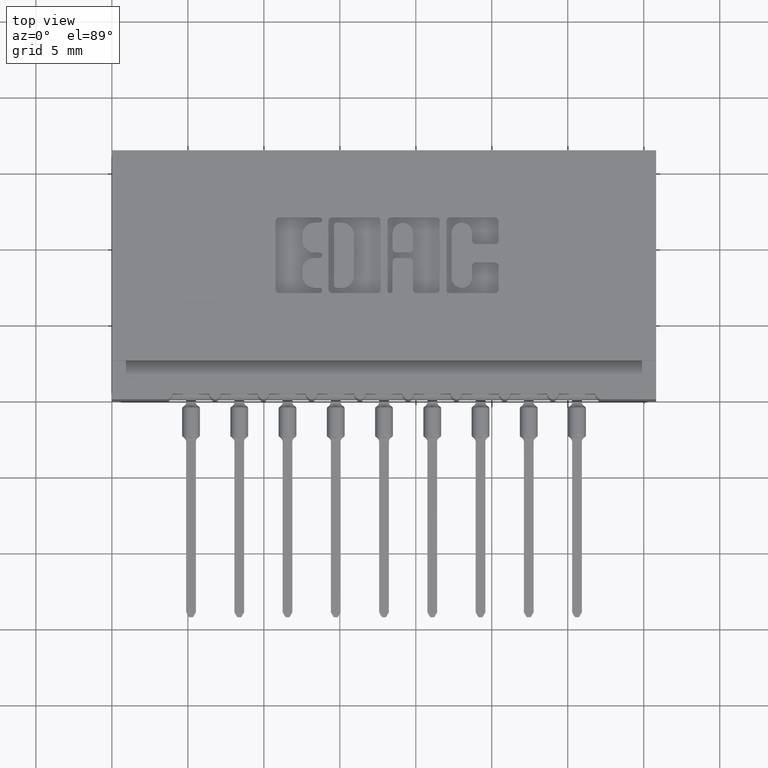
[diagram: clean part render]
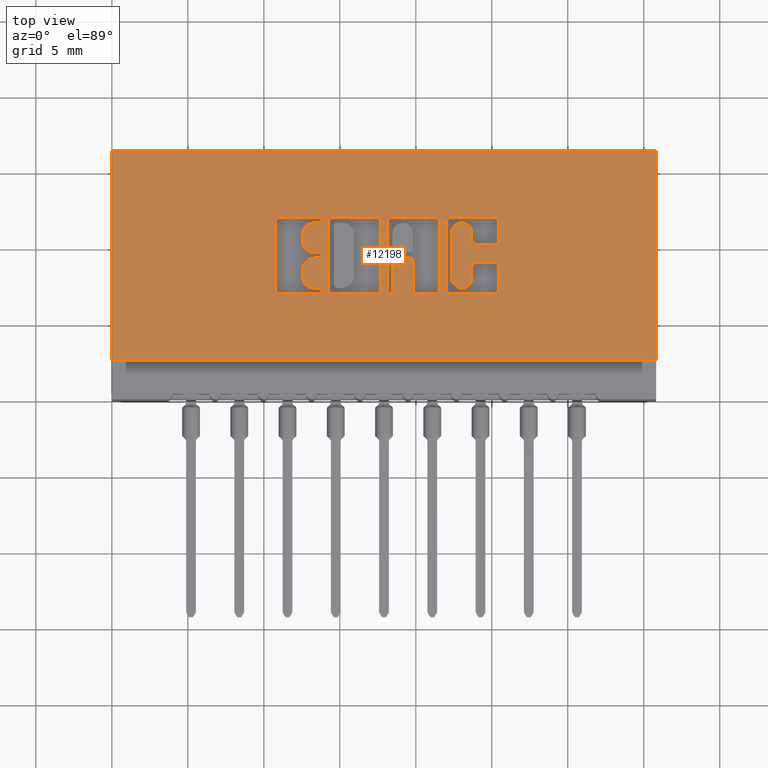
[diagram: same view with one face highlighted and labeled with its STEP entity id]
A machine part, top view. The second image highlights one B-rep face of the part: STEP entity #12198.
In plain terms, the highlighted planar face has unit normal (0, 0, -1).
Its self-contained STEP definition (entity closure, byte-faithful):
#16 = CARTESIAN_POINT ( 'NONE',  ( 0.4932269153529095784, 0.4107811137948584324, 0.0000000000000000000 ) ) ;
#30 = VERTEX_POINT ( 'NONE', #4989 ) ;
#65 = CIRCLE ( 'NONE', #17805, 0.006870969142648501726 ) ;
#81 = CARTESIAN_POINT ( 'NONE',  ( -1.976217237646404398E-15, 0.2743432979619818690, 0.0000000000000000000 ) ) ;
#96 = EDGE_CURVE ( 'NONE', #14058, #9358, #15443, .T. ) ;
#133 = VERTEX_POINT ( 'NONE', #7858 ) ;
#189 = VERTEX_POINT ( 'NONE', #1016 ) ;
#209 = LINE ( 'NONE', #5469, #3568 ) ;
#231 = ORIENTED_EDGE ( 'NONE', *, *, #6335, .F. ) ;
#243 = CARTESIAN_POINT ( 'NONE',  ( 0.5450045756779977602, 0.2812142671046480302, 0.0000000000000000000 ) ) ;
#413 = DIRECTION ( 'NONE',  ( 1.000000000000000000, 0.0000000000000000000, 0.0000000000000000000 ) ) ;
#420 = DIRECTION ( 'NONE',  ( -0.0000000000000000000, 0.0000000000000000000, 1.000000000000000000 ) ) ;
#423 = ORIENTED_EDGE ( 'NONE', *, *, #17710, .F. ) ;
#458 = VECTOR ( 'NONE', #2012, 39.37007874015748143 ) ;
#470 = ORIENTED_EDGE ( 'NONE', *, *, #16567, .F. ) ;
#476 = ORIENTED_EDGE ( 'NONE', *, *, #12045, .F. ) ;
#554 = CARTESIAN_POINT ( 'NONE',  ( -0.0000000000000000000, 0.2743432979619832568, 0.0000000000000000000 ) ) ;
#681 = CARTESIAN_POINT ( 'NONE',  ( 0.7700288151001881687, 0.3656290308573498238, 0.0000000000000000000 ) ) ;
#685 = EDGE_CURVE ( 'NONE', #9358, #7194, #15703, .T. ) ;
#761 = DIRECTION ( 'NONE',  ( 1.000000000000000000, 0.0000000000000000000, 0.0000000000000000000 ) ) ;
#795 = CARTESIAN_POINT ( 'NONE',  ( 0.9918629617061320847, 0.4608410318342109901, 0.0000000000000000000 ) ) ;
#818 = EDGE_CURVE ( 'NONE', #9185, #2423, #15884, .T. ) ;
#895 = CARTESIAN_POINT ( 'NONE',  ( 0.4338421106199222277, 0.2841589681657900046, 0.0000000000000000000 ) ) ;
#899 = DIRECTION ( 'NONE',  ( -0.0000000000000000000, 0.0000000000000000000, 1.000000000000000000 ) ) ;
#940 = CIRCLE ( 'NONE', #3295, 0.009815670203796511215 ) ;
#942 = CARTESIAN_POINT ( 'NONE',  ( 0.7204596805709870821, 0.2812142671046480302, 0.0000000000000000000 ) ) ;
#967 = ORIENTED_EDGE ( 'NONE', *, *, #15474, .F. ) ;
#996 = EDGE_LOOP ( 'NONE', ( #9541, #16223, #15762, #13441, #4541, #3647, #231, #10370 ) ) ;
#1016 = CARTESIAN_POINT ( 'NONE',  ( 0.0000000000000000000, 0.1000000000000000056, 0.0000000000000000000 ) ) ;
#1050 = AXIS2_PLACEMENT_3D ( 'NONE', #14097, #5962, #17258 ) ;
#1054 = ORIENTED_EDGE ( 'NONE', *, *, #16258, .F. ) ;
#1056 = VERTEX_POINT ( 'NONE', #8883 ) ;
#1066 = DIRECTION ( 'NONE',  ( 1.000000000000000000, 0.0000000000000000000, 0.0000000000000000000 ) ) ;
#1097 = CARTESIAN_POINT ( 'NONE',  ( 0.5707707099630101588, 0.4608410318342101575, 0.0000000000000000000 ) ) ;
#1101 = CARTESIAN_POINT ( 'NONE',  ( 1.001678631909972195, 0.0000000000000000000, 0.0000000000000000000 ) ) ;
#1115 = EDGE_CURVE ( 'NONE', #8313, #12438, #940, .T. ) ;
#1139 = EDGE_CURVE ( 'NONE', #8689, #3929, #9489, .T. ) ;
#1152 = EDGE_CURVE ( 'NONE', #2631, #3450, #13928, .T. ) ;
#1161 = CARTESIAN_POINT ( 'NONE',  ( 1.001678631909972195, 0.4112718973050387139, 0.0000000000000000000 ) ) ;
#1173 = ORIENTED_EDGE ( 'NONE', *, *, #11662, .F. ) ;
#1208 = CARTESIAN_POINT ( 'NONE',  ( 0.9324781569731659392, 0.0000000000000000000, 0.0000000000000000000 ) ) ;
#1280 = DIRECTION ( 'NONE',  ( 1.000000000000000000, 7.203446383881649836E-15, 0.0000000000000000000 ) ) ;
#1356 = EDGE_CURVE ( 'NONE', #9857, #5596, #12448, .T. ) ;
#1399 = DIRECTION ( 'NONE',  ( 0.0000000000000000000, -1.000000000000000000, 0.0000000000000000000 ) ) ;
#1408 = FACE_BOUND ( 'NONE', #13827, .T. ) ;
#1459 = DIRECTION ( 'NONE',  ( 1.000000000000000000, 0.0000000000000000000, 0.0000000000000000000 ) ) ;
#1568 = EDGE_CURVE ( 'NONE', #4917, #12901, #4551, .T. ) ;
#1585 = CARTESIAN_POINT ( 'NONE',  ( 0.9918629617061683890, 0.4706567020380511002, 0.0000000000000000000 ) ) ;
#1678 = CARTESIAN_POINT ( 'NONE',  ( 0.4932269153529278416, 0.3342188862052006271, 0.0000000000000000000 ) ) ;
#1787 = ORIENTED_EDGE ( 'NONE', *, *, #3260, .T. ) ;
#1837 = DIRECTION ( 'NONE',  ( 0.0000000000000000000, -1.000000000000000000, 0.0000000000000000000 ) ) ;
#1948 = ORIENTED_EDGE ( 'NONE', *, *, #16987, .F. ) ;
#2010 = DIRECTION ( 'NONE',  ( -0.0000000000000000000, 0.0000000000000000000, 1.000000000000000000 ) ) ;
#2012 = DIRECTION ( 'NONE',  ( -1.000000000000000000, 0.0000000000000000000, 0.0000000000000000000 ) ) ;
#2019 = ORIENTED_EDGE ( 'NONE', *, *, #2145, .F. ) ;
#2047 = EDGE_CURVE ( 'NONE', #17257, #8550, #11981, .T. ) ;
#2048 = EDGE_CURVE ( 'NONE', #8550, #17016, #17592, .T. ) ;
#2062 = VECTOR ( 'NONE', #10138, 39.37007874015748143 ) ;
#2145 = EDGE_CURVE ( 'NONE', #13844, #17846, #10873, .T. ) ;
#2151 = CARTESIAN_POINT ( 'NONE',  ( 0.5381336065353513609, 0.4637857328953863267, 0.0000000000000000000 ) ) ;
#2164 = CARTESIAN_POINT ( 'NONE',  ( 0.9324781569731659392, 0.4112718973050452642, 0.0000000000000000000 ) ) ;
#2195 = DIRECTION ( 'NONE',  ( -0.0000000000000000000, 0.0000000000000000000, 1.000000000000000000 ) ) ;
#2218 = DIRECTION ( 'NONE',  ( -0.0000000000000000000, 0.0000000000000000000, 1.000000000000000000 ) ) ;
#2230 = LINE ( 'NONE', #6477, #4433 ) ;
#2287 = CARTESIAN_POINT ( 'NONE',  ( 0.8760380533012653848, 0.2743432979619832568, 0.0000000000000000000 ) ) ;
#2419 = CARTESIAN_POINT ( 'NONE',  ( 0.5609550397591692716, 0.4608410318342101575, 0.0000000000000000000 ) ) ;
#2423 = VERTEX_POINT ( 'NONE', #15773 ) ;
#2446 = CARTESIAN_POINT ( 'NONE',  ( 1.409999999999999920, 0.6449999999999999067, 0.0000000000000000000 ) ) ;
#2451 = CARTESIAN_POINT ( 'NONE',  ( 0.5246370600050840327, 0.3342188862052006271, 0.0000000000000000000 ) ) ;
#2465 = DIRECTION ( 'NONE',  ( 0.0000000000000000000, 1.000000000000000000, -0.0000000000000000000 ) ) ;
#2479 = CARTESIAN_POINT ( 'NONE',  ( 0.9422938271769776275, 0.4014562271012336869, 0.0000000000000000000 ) ) ;
#2482 = LINE ( 'NONE', #1101, #7224 ) ;
#2489 = EDGE_CURVE ( 'NONE', #3929, #17257, #65, .T. ) ;
#2513 = ORIENTED_EDGE ( 'NONE', *, *, #10056, .T. ) ;
#2541 = VECTOR ( 'NONE', #4154, 39.37007874015748143 ) ;
#2580 = CIRCLE ( 'NONE', #7302, 0.03141014465215623969 ) ;
#2614 = DIRECTION ( 'NONE',  ( 0.0000000000000000000, 0.0000000000000000000, -1.000000000000000000 ) ) ;
#2631 = VERTEX_POINT ( 'NONE', #11018 ) ;
#2637 = ORIENTED_EDGE ( 'NONE', *, *, #8086, .F. ) ;
#2681 = EDGE_CURVE ( 'NONE', #11637, #7509, #6603, .T. ) ;
#2703 = CARTESIAN_POINT ( 'NONE',  ( 0.5246370600050840327, 0.3656290308573568737, 0.0000000000000000000 ) ) ;
#2709 = DIRECTION ( 'NONE',  ( -1.000000000000000000, 0.0000000000000000000, 0.0000000000000000000 ) ) ;
#2738 = CARTESIAN_POINT ( 'NONE',  ( 0.7700288151001878356, 0.3558133606535528459, 0.0000000000000000000 ) ) ;
#2739 = CARTESIAN_POINT ( 'NONE',  ( 0.6865956183678620928, 0.2743432979619832568, 0.0000000000000000000 ) ) ;
#2778 = VERTEX_POINT ( 'NONE', #3733 ) ;
#2788 = AXIS2_PLACEMENT_3D ( 'NONE', #14142, #15732, #9877 ) ;
#2858 = VECTOR ( 'NONE', #9817, 39.37007874015748143 ) ;
#2901 = EDGE_CURVE ( 'NONE', #5596, #9751, #6874, .T. ) ;
#2938 = VERTEX_POINT ( 'NONE', #6026 ) ;
#2945 = AXIS2_PLACEMENT_3D ( 'NONE', #942, #16387, #3617 ) ;
#2948 = EDGE_CURVE ( 'NONE', #5752, #12149, #16105, .T. ) ;
#2960 = VERTEX_POINT ( 'NONE', #1678 ) ;
#2998 = VERTEX_POINT ( 'NONE', #7855 ) ;
#3026 = DIRECTION ( 'NONE',  ( -0.0000000000000000000, 0.0000000000000000000, 1.000000000000000000 ) ) ;
#3038 = VERTEX_POINT ( 'NONE', #6466 ) ;
#3048 = EDGE_CURVE ( 'NONE', #14837, #30, #15806, .T. ) ;
#3171 = CIRCLE ( 'NONE', #12029, 0.006870969142662229460 ) ;
#3176 = EDGE_CURVE ( 'NONE', #12901, #3038, #2482, .T. ) ;
#3189 = DIRECTION ( 'NONE',  ( -0.0000000000000000000, 0.0000000000000000000, 1.000000000000000000 ) ) ;
#3207 = DIRECTION ( 'NONE',  ( 1.000000000000000000, 0.0000000000000000000, 0.0000000000000000000 ) ) ;
#3217 = LINE ( 'NONE', #14501, #13846 ) ;
#3260 = EDGE_CURVE ( 'NONE', #9185, #9751, #8696, .T. ) ;
#3277 = DIRECTION ( 'NONE',  ( 1.000000000000000000, 0.0000000000000000000, 0.0000000000000000000 ) ) ;
#3295 = AXIS2_PLACEMENT_3D ( 'NONE', #17143, #17421, #17232 ) ;
#3302 = DIRECTION ( 'NONE',  ( 1.000000000000000000, 0.0000000000000000000, 0.0000000000000000000 ) ) ;
#3312 = CARTESIAN_POINT ( 'NONE',  ( 1.001678631909940220, 0.2841589681657830102, 0.0000000000000000000 ) ) ;
#3353 = ORIENTED_EDGE ( 'NONE', *, *, #4182, .T. ) ;
#3376 = CARTESIAN_POINT ( 'NONE',  ( 0.8490449602408067786, 0.4608410318342010537, 0.0000000000000000000 ) ) ;
#3429 = AXIS2_PLACEMENT_3D ( 'NONE', #1097, #16187, #10527 ) ;
#3450 = VERTEX_POINT ( 'NONE', #2287 ) ;
#3513 = CARTESIAN_POINT ( 'NONE',  ( 0.6865956183678280089, 0.4608410318342100465, 0.0000000000000000000 ) ) ;
#3518 = CARTESIAN_POINT ( 'NONE',  ( 0.5246370600051254440, 0.4569147637527357642, 0.0000000000000000000 ) ) ;
#3548 = DIRECTION ( 'NONE',  ( 1.000000000000000000, 0.0000000000000000000, 0.0000000000000000000 ) ) ;
#3568 = VECTOR ( 'NONE', #5835, 39.37007874015748143 ) ;
#3591 = DIRECTION ( 'NONE',  ( -0.0000000000000000000, 0.0000000000000000000, 1.000000000000000000 ) ) ;
#3617 = DIRECTION ( 'NONE',  ( 1.000000000000000000, 0.0000000000000000000, 0.0000000000000000000 ) ) ;
#3624 = EDGE_CURVE ( 'NONE', #9553, #2423, #7535, .T. ) ;
#3647 = ORIENTED_EDGE ( 'NONE', *, *, #15947, .F. ) ;
#3662 = VERTEX_POINT ( 'NONE', #8461 ) ;
#3703 = EDGE_CURVE ( 'NONE', #4324, #12671, #12619, .T. ) ;
#3716 = ORIENTED_EDGE ( 'NONE', *, *, #7648, .F. ) ;
#3733 = CARTESIAN_POINT ( 'NONE',  ( 0.9918629617061344161, 0.2743432979619832568, 0.0000000000000000000 ) ) ;
#3734 = VERTEX_POINT ( 'NONE', #5774 ) ;
#3770 = CIRCLE ( 'NONE', #16767, 0.009815670203840083999 ) ;
#3810 = CIRCLE ( 'NONE', #6176, 0.009815670203803203778 ) ;
#3827 = EDGE_CURVE ( 'NONE', #2998, #189, #13169, .T. ) ;
#3929 = VERTEX_POINT ( 'NONE', #15208 ) ;
#3987 = ORIENTED_EDGE ( 'NONE', *, *, #9200, .F. ) ;
#3998 = CARTESIAN_POINT ( 'NONE',  ( 0.0000000000000000000, 0.2743432979619847001, 0.0000000000000000000 ) ) ;
#4041 = LINE ( 'NONE', #81, #10823 ) ;
#4046 = EDGE_CURVE ( 'NONE', #15318, #13844, #4094, .T. ) ;
#4057 = CARTESIAN_POINT ( 'NONE',  ( 0.9918629617061671677, 0.4014562271012336869, 0.0000000000000000000 ) ) ;
#4094 = LINE ( 'NONE', #9550, #17018 ) ;
#4097 = CARTESIAN_POINT ( 'NONE',  ( 0.6964112885716690071, 0.0000000000000000000, 0.0000000000000000000 ) ) ;
#4154 = DIRECTION ( 'NONE',  ( 0.0000000000000000000, -1.000000000000000000, 0.0000000000000000000 ) ) ;
#4173 = CARTESIAN_POINT ( 'NONE',  ( 0.0000000000000000000, 0.6449999999999999067, 0.0000000000000000000 ) ) ;
#4182 = EDGE_CURVE ( 'NONE', #8313, #5655, #14264, .T. ) ;
#4204 = DIRECTION ( 'NONE',  ( -1.000000000000000000, -3.530861605407645268E-14, 0.0000000000000000000 ) ) ;
#4264 = DIRECTION ( 'NONE',  ( -0.0000000000000000000, 0.0000000000000000000, 1.000000000000000000 ) ) ;
#4317 = AXIS2_PLACEMENT_3D ( 'NONE', #895, #9209, #15051 ) ;
#4324 = VERTEX_POINT ( 'NONE', #681 ) ;
#4343 = AXIS2_PLACEMENT_3D ( 'NONE', #4961, #899, #14777 ) ;
#4398 = ORIENTED_EDGE ( 'NONE', *, *, #7873, .F. ) ;
#4416 = DIRECTION ( 'NONE',  ( -1.000000000000000000, 0.0000000000000000000, 0.0000000000000000000 ) ) ;
#4428 = VECTOR ( 'NONE', #12704, 39.37007874015748143 ) ;
#4433 = VECTOR ( 'NONE', #5088, 39.37007874015748143 ) ;
#4457 = EDGE_CURVE ( 'NONE', #8187, #8507, #13118, .T. ) ;
#4505 = LINE ( 'NONE', #17117, #10875 ) ;
#4541 = ORIENTED_EDGE ( 'NONE', *, *, #11078, .F. ) ;
#4551 = CIRCLE ( 'NONE', #2788, 0.009815670203804980135 ) ;
#4580 = CARTESIAN_POINT ( 'NONE',  ( 0.7371463199174502767, 0.3558133606535456295, 0.0000000000000000000 ) ) ;
#4656 = LINE ( 'NONE', #5862, #10524 ) ;
#4736 = CIRCLE ( 'NONE', #16862, 0.009815670203796237128 ) ;
#4792 = CARTESIAN_POINT ( 'NONE',  ( 0.7273306497136469151, 0.0000000000000000000, 0.0000000000000000000 ) ) ;
#4830 = LINE ( 'NONE', #11862, #5805 ) ;
#4859 = AXIS2_PLACEMENT_3D ( 'NONE', #15892, #3026, #9952 ) ;
#4912 = CARTESIAN_POINT ( 'NONE',  ( 0.4932269153529278416, 0.3194953808994904221, 0.0000000000000000000 ) ) ;
#4917 = VERTEX_POINT ( 'NONE', #4057 ) ;
#4961 = CARTESIAN_POINT ( 'NONE',  ( 0.9422938271769776275, 0.4112718973050452642, 0.0000000000000000000 ) ) ;
#4989 = CARTESIAN_POINT ( 'NONE',  ( 0.9324781569731790398, 0.3143421540424530258, 0.0000000000000000000 ) ) ;
#4994 = AXIS2_PLACEMENT_3D ( 'NONE', #4173, #2614, #9717 ) ;
#5007 = LINE ( 'NONE', #10646, #15411 ) ;
#5021 = CARTESIAN_POINT ( 'NONE',  ( 0.5246370600051095678, 0.3194953808994904221, 0.0000000000000000000 ) ) ;
#5088 = DIRECTION ( 'NONE',  ( 1.000000000000000000, 0.0000000000000000000, 0.0000000000000000000 ) ) ;
#5110 = DIRECTION ( 'NONE',  ( -1.000000000000000000, 0.0000000000000000000, 0.0000000000000000000 ) ) ;
#5158 = VECTOR ( 'NONE', #13274, 39.37007874015748143 ) ;
#5163 = DIRECTION ( 'NONE',  ( -0.0000000000000000000, 0.0000000000000000000, 1.000000000000000000 ) ) ;
#5255 = VERTEX_POINT ( 'NONE', #8110 ) ;
#5469 = CARTESIAN_POINT ( 'NONE',  ( 0.0000000000000000000, 0.6449999999999999067, 0.0000000000000000000 ) ) ;
#5481 = DIRECTION ( 'NONE',  ( 0.0000000000000000000, 1.000000000000000000, -0.0000000000000000000 ) ) ;
#5494 = ORIENTED_EDGE ( 'NONE', *, *, #5652, .F. ) ;
#5596 = VERTEX_POINT ( 'NONE', #12865 ) ;
#5606 = VECTOR ( 'NONE', #5110, 39.37007874015748143 ) ;
#5628 = CIRCLE ( 'NONE', #18058, 0.009815670203796920609 ) ;
#5652 = EDGE_CURVE ( 'NONE', #1056, #13813, #6660, .T. ) ;
#5655 = VERTEX_POINT ( 'NONE', #13978 ) ;
#5722 = CARTESIAN_POINT ( 'NONE',  ( 0.5381336064154144117, 0.2743432979619857548, 0.0000000000000000000 ) ) ;
#5728 = ORIENTED_EDGE ( 'NONE', *, *, #1115, .F. ) ;
#5752 = VERTEX_POINT ( 'NONE', #9062 ) ;
#5774 = CARTESIAN_POINT ( 'NONE',  ( 0.8490449602408067786, 0.2841589681657809008, 0.0000000000000000000 ) ) ;
#5805 = VECTOR ( 'NONE', #413, 39.37007874015748143 ) ;
#5835 = DIRECTION ( 'NONE',  ( -0.0000000000000000000, -1.000000000000000000, -0.0000000000000000000 ) ) ;
#5854 = ORIENTED_EDGE ( 'NONE', *, *, #7260, .T. ) ;
#5862 = CARTESIAN_POINT ( 'NONE',  ( -0.0000000000000000000, 0.3656290308573568737, 0.0000000000000000000 ) ) ;
#5881 = EDGE_LOOP ( 'NONE', ( #12317, #17523, #423, #11261 ) ) ;
#5897 = EDGE_CURVE ( 'NONE', #8507, #11810, #17015, .T. ) ;
#5920 = VERTEX_POINT ( 'NONE', #5722 ) ;
#5962 = DIRECTION ( 'NONE',  ( -0.0000000000000000000, 0.0000000000000000000, 1.000000000000000000 ) ) ;
#5998 = EDGE_CURVE ( 'NONE', #5752, #10287, #7205, .T. ) ;
#6025 = CARTESIAN_POINT ( 'NONE',  ( 0.8392292900370105224, 0.2841589681657809008, 0.0000000000000000000 ) ) ;
#6026 = CARTESIAN_POINT ( 'NONE',  ( 0.7273306497136469151, 0.2812142671046480302, 0.0000000000000000000 ) ) ;
#6176 = AXIS2_PLACEMENT_3D ( 'NONE', #13047, #15750, #14532 ) ;
#6239 = VERTEX_POINT ( 'NONE', #2479 ) ;
#6261 = CARTESIAN_POINT ( 'NONE',  ( 0.7371463199174502767, 0.3656290308573487136, 0.0000000000000000000 ) ) ;
#6262 = CARTESIAN_POINT ( 'NONE',  ( 0.0000000000000000000, 0.4706567020380327815, 0.0000000000000000000 ) ) ;
#6335 = EDGE_CURVE ( 'NONE', #7194, #12433, #17624, .T. ) ;
#6409 = LINE ( 'NONE', #16135, #14175 ) ;
#6415 = DIRECTION ( 'NONE',  ( -1.000000000000000000, -0.0000000000000000000, -0.0000000000000000000 ) ) ;
#6452 = CARTESIAN_POINT ( 'NONE',  ( 0.7896601555077857881, 0.2743432979619847001, 0.0000000000000000000 ) ) ;
#6463 = CARTESIAN_POINT ( 'NONE',  ( 0.6964112885716690071, 0.4608410318342101575, 0.0000000000000000000 ) ) ;
#6466 = CARTESIAN_POINT ( 'NONE',  ( 1.001678631909972195, 0.4608410318341948919, 0.0000000000000000000 ) ) ;
#6477 = CARTESIAN_POINT ( 'NONE',  ( -0.0000000000000000000, 0.4569147637527357642, 0.0000000000000000000 ) ) ;
#6573 = EDGE_CURVE ( 'NONE', #12671, #10513, #13767, .T. ) ;
#6603 = LINE ( 'NONE', #13712, #11291 ) ;
#6613 = DIRECTION ( 'NONE',  ( 1.000000000000000000, 0.0000000000000000000, 0.0000000000000000000 ) ) ;
#6660 = CIRCLE ( 'NONE', #10196, 0.009815670203788042295 ) ;
#6664 = CARTESIAN_POINT ( 'NONE',  ( 0.5381336065353100606, 0.3725000000000204259, 0.0000000000000000000 ) ) ;
#6669 = EDGE_CURVE ( 'NONE', #11620, #3662, #9326, .T. ) ;
#6671 = CARTESIAN_POINT ( 'NONE',  ( 0.8799643213828184374, 0.3143421540424530258, 0.0000000000000000000 ) ) ;
#6683 = CARTESIAN_POINT ( 'NONE',  ( 0.0000000000000000000, 0.4706567020380511002, 0.0000000000000000000 ) ) ;
#6738 = DIRECTION ( 'NONE',  ( 0.0000000000000000000, 1.000000000000000000, -0.0000000000000000000 ) ) ;
#6766 = ORIENTED_EDGE ( 'NONE', *, *, #12980, .T. ) ;
#6874 = LINE ( 'NONE', #11110, #14454 ) ;
#6895 = DIRECTION ( 'NONE',  ( -0.0000000000000000000, 0.0000000000000000000, 1.000000000000000000 ) ) ;
#6924 = CARTESIAN_POINT ( 'NONE',  ( 0.5246370600050840327, 0.3793709691426839226, 0.0000000000000000000 ) ) ;
#6974 = EDGE_CURVE ( 'NONE', #12100, #15759, #4656, .T. ) ;
#7049 = FACE_BOUND ( 'NONE', #15540, .T. ) ;
#7064 = LINE ( 'NONE', #4097, #16494 ) ;
#7091 = CARTESIAN_POINT ( 'NONE',  ( 0.0000000000000000000, 0.4706567020380511002, 0.0000000000000000000 ) ) ;
#7143 = CARTESIAN_POINT ( 'NONE',  ( 0.9918629617061566206, 0.3538502266127576124, 0.0000000000000000000 ) ) ;
#7194 = VERTEX_POINT ( 'NONE', #14933 ) ;
#7205 = LINE ( 'NONE', #1208, #2541 ) ;
#7223 = FACE_OUTER_BOUND ( 'NONE', #5881, .T. ) ;
#7224 = VECTOR ( 'NONE', #6738, 39.37007874015748143 ) ;
#7247 = VERTEX_POINT ( 'NONE', #2446 ) ;
#7257 = DIRECTION ( 'NONE',  ( 1.000000000000000000, 0.0000000000000000000, 0.0000000000000000000 ) ) ;
#7260 = EDGE_CURVE ( 'NONE', #10092, #17301, #8171, .T. ) ;
#7302 = AXIS2_PLACEMENT_3D ( 'NONE', #2451, #9279, #1066 ) ;
#7316 = AXIS2_PLACEMENT_3D ( 'NONE', #7446, #3189, #7257 ) ;
#7446 = CARTESIAN_POINT ( 'NONE',  ( 0.8760380533012994686, 0.4608410318342101575, 0.0000000000000000000 ) ) ;
#7477 = ORIENTED_EDGE ( 'NONE', *, *, #6669, .F. ) ;
#7509 = VERTEX_POINT ( 'NONE', #13757 ) ;
#7534 = CARTESIAN_POINT ( 'NONE',  ( 0.5707707099629760750, 0.2743432979619832568, 0.0000000000000000000 ) ) ;
#7535 = CIRCLE ( 'NONE', #1050, 0.03141014465221592805 ) ;
#7595 = EDGE_CURVE ( 'NONE', #6239, #4917, #12463, .T. ) ;
#7635 = AXIS2_PLACEMENT_3D ( 'NONE', #16266, #3591, #9220 ) ;
#7648 = EDGE_CURVE ( 'NONE', #3662, #5920, #4041, .T. ) ;
#7675 = CIRCLE ( 'NONE', #9430, 0.006870969142663527034 ) ;
#7807 = CARTESIAN_POINT ( 'NONE',  ( 1.409999999999999920, 0.1000000000000000056, 0.0000000000000000000 ) ) ;
#7855 = CARTESIAN_POINT ( 'NONE',  ( 1.409999999999999920, 0.1000000000000000056, 0.0000000000000000000 ) ) ;
#7858 = CARTESIAN_POINT ( 'NONE',  ( 0.5609550397591692716, 0.2841589681657900046, 0.0000000000000000000 ) ) ;
#7873 = EDGE_CURVE ( 'NONE', #10287, #6239, #11431, .T. ) ;
#7888 = ORIENTED_EDGE ( 'NONE', *, *, #3048, .T. ) ;
#7989 = VECTOR ( 'NONE', #2465, 39.37007874015748143 ) ;
#8022 = CARTESIAN_POINT ( 'NONE',  ( 0.5381336064154144117, 0.2880852362473102501, 0.0000000000000000000 ) ) ;
#8086 = EDGE_CURVE ( 'NONE', #5920, #8565, #3171, .T. ) ;
#8110 = CARTESIAN_POINT ( 'NONE',  ( 0.7135887114283309129, 0.2812142671046480302, 0.0000000000000000000 ) ) ;
#8152 = LINE ( 'NONE', #12396, #8520 ) ;
#8160 = EDGE_CURVE ( 'NONE', #9917, #12129, #16483, .T. ) ;
#8171 = LINE ( 'NONE', #3998, #2858 ) ;
#8187 = VERTEX_POINT ( 'NONE', #7534 ) ;
#8268 = DIRECTION ( 'NONE',  ( 1.000000000000000000, 0.0000000000000000000, 0.0000000000000000000 ) ) ;
#8277 = ORIENTED_EDGE ( 'NONE', *, *, #2681, .T. ) ;
#8313 = VERTEX_POINT ( 'NONE', #13631 ) ;
#8373 = DIRECTION ( 'NONE',  ( -0.0000000000000000000, 0.0000000000000000000, 1.000000000000000000 ) ) ;
#8401 = AXIS2_PLACEMENT_3D ( 'NONE', #9234, #2218, #9318 ) ;
#8403 = CARTESIAN_POINT ( 'NONE',  ( 0.5246370600051095678, 0.2880852362473086403, 0.0000000000000000000 ) ) ;
#8426 = CARTESIAN_POINT ( 'NONE',  ( 0.4240264404161154799, 0.2841589681657900046, 0.0000000000000000000 ) ) ;
#8461 = CARTESIAN_POINT ( 'NONE',  ( 0.4338421106199186195, 0.2743432979619850332, 0.0000000000000000000 ) ) ;
#8464 = DIRECTION ( 'NONE',  ( 1.000000000000000000, 0.0000000000000000000, 0.0000000000000000000 ) ) ;
#8507 = VERTEX_POINT ( 'NONE', #2739 ) ;
#8515 = CARTESIAN_POINT ( 'NONE',  ( 0.6865956183678961766, 0.4706567020380511002, 0.0000000000000000000 ) ) ;
#8518 = VECTOR ( 'NONE', #16361, 39.37007874015748143 ) ;
#8519 = ORIENTED_EDGE ( 'NONE', *, *, #15696, .T. ) ;
#8520 = VECTOR ( 'NONE', #1399, 39.37007874015748143 ) ;
#8522 = CARTESIAN_POINT ( 'NONE',  ( 0.0000000000000000000, 0.6449999999999999067, 0.0000000000000000000 ) ) ;
#8550 = VERTEX_POINT ( 'NONE', #15327 ) ;
#8554 = CIRCLE ( 'NONE', #2945, 0.006870969142657995000 ) ;
#8565 = VERTEX_POINT ( 'NONE', #243 ) ;
#8689 = VERTEX_POINT ( 'NONE', #9095 ) ;
#8696 = CIRCLE ( 'NONE', #4859, 0.03141014465217447510 ) ;
#8812 = VECTOR ( 'NONE', #13178, 39.37007874015748143 ) ;
#8883 = CARTESIAN_POINT ( 'NONE',  ( 0.9422938271769670804, 0.3538502266127576124, 0.0000000000000000000 ) ) ;
#8902 = DIRECTION ( 'NONE',  ( -0.0000000000000000000, 0.0000000000000000000, 1.000000000000000000 ) ) ;
#9002 = CARTESIAN_POINT ( 'NONE',  ( 0.5450045756779735573, 0.3725000000000204259, 0.0000000000000000000 ) ) ;
#9008 = AXIS2_PLACEMENT_3D ( 'NONE', #17797, #15094, #17700 ) ;
#9025 = LINE ( 'NONE', #11807, #2062 ) ;
#9062 = CARTESIAN_POINT ( 'NONE',  ( 0.9324781569731659392, 0.4306578454992600058, 0.0000000000000000000 ) ) ;
#9095 = CARTESIAN_POINT ( 'NONE',  ( 0.5381336065353513609, 0.4569147637527357642, 0.0000000000000000000 ) ) ;
#9158 = CARTESIAN_POINT ( 'NONE',  ( 0.8760380533012653848, 0.2841589681657900046, 0.0000000000000000000 ) ) ;
#9162 = AXIS2_PLACEMENT_3D ( 'NONE', #15194, #18073, #13883 ) ;
#9185 = VERTEX_POINT ( 'NONE', #16 ) ;
#9200 = EDGE_CURVE ( 'NONE', #17016, #11620, #8152, .T. ) ;
#9208 = DIRECTION ( 'NONE',  ( 1.000000000000000000, 0.0000000000000000000, 0.0000000000000000000 ) ) ;
#9209 = DIRECTION ( 'NONE',  ( -0.0000000000000000000, 0.0000000000000000000, 1.000000000000000000 ) ) ;
#9220 = DIRECTION ( 'NONE',  ( 1.000000000000000000, 0.0000000000000000000, 0.0000000000000000000 ) ) ;
#9234 = CARTESIAN_POINT ( 'NONE',  ( 0.9062212391779922438, 0.4306578459575296502, 0.0000000000000000000 ) ) ;
#9279 = DIRECTION ( 'NONE',  ( -0.0000000000000000000, 0.0000000000000000000, 1.000000000000000000 ) ) ;
#9318 = DIRECTION ( 'NONE',  ( 1.000000000000000000, 0.0000000000000000000, 0.0000000000000000000 ) ) ;
#9320 = VECTOR ( 'NONE', #10521, 39.37007874015748143 ) ;
#9326 = CIRCLE ( 'NONE', #4317, 0.009815670203805868313 ) ;
#9358 = VERTEX_POINT ( 'NONE', #8515 ) ;
#9430 = AXIS2_PLACEMENT_3D ( 'NONE', #12756, #9875, #18057 ) ;
#9489 = CIRCLE ( 'NONE', #17498, 0.006870969142648501726 ) ;
#9515 = CARTESIAN_POINT ( 'NONE',  ( 0.5609550397591692716, 0.0000000000000000000, 0.0000000000000000000 ) ) ;
#9541 = ORIENTED_EDGE ( 'NONE', *, *, #96, .F. ) ;
#9550 = CARTESIAN_POINT ( 'NONE',  ( 1.001678631909940220, 0.0000000000000000000, 0.0000000000000000000 ) ) ;
#9553 = VERTEX_POINT ( 'NONE', #3518 ) ;
#9633 = ORIENTED_EDGE ( 'NONE', *, *, #2048, .F. ) ;
#9717 = DIRECTION ( 'NONE',  ( -1.000000000000000000, 0.0000000000000000000, -0.0000000000000000000 ) ) ;
#9734 = CIRCLE ( 'NONE', #15674, 0.03141014465218178175 ) ;
#9750 = CARTESIAN_POINT ( 'NONE',  ( 0.5381336065353355957, 0.2812142671046480302, 0.0000000000000000000 ) ) ;
#9751 = VERTEX_POINT ( 'NONE', #6924 ) ;
#9784 = LINE ( 'NONE', #9515, #10360 ) ;
#9792 = DIRECTION ( 'NONE',  ( -0.0000000000000000000, 0.0000000000000000000, 1.000000000000000000 ) ) ;
#9817 = DIRECTION ( 'NONE',  ( -1.000000000000000000, 0.0000000000000000000, 0.0000000000000000000 ) ) ;
#9822 = ORIENTED_EDGE ( 'NONE', *, *, #5998, .F. ) ;
#9857 = VERTEX_POINT ( 'NONE', #9002 ) ;
#9875 = DIRECTION ( 'NONE',  ( -0.0000000000000000000, 0.0000000000000000000, 1.000000000000000000 ) ) ;
#9877 = DIRECTION ( 'NONE',  ( 1.000000000000000000, 0.0000000000000000000, 0.0000000000000000000 ) ) ;
#9880 = CARTESIAN_POINT ( 'NONE',  ( 0.9324781569731790398, 0.3440345564089687391, 0.0000000000000000000 ) ) ;
#9882 = VECTOR ( 'NONE', #6415, 39.37007874015748143 ) ;
#9917 = VERTEX_POINT ( 'NONE', #10399 ) ;
#9931 = CIRCLE ( 'NONE', #10833, 0.009815670203806345362 ) ;
#9932 = EDGE_CURVE ( 'NONE', #3038, #11758, #3770, .T. ) ;
#9952 = DIRECTION ( 'NONE',  ( 1.000000000000000000, 0.0000000000000000000, 0.0000000000000000000 ) ) ;
#10056 = EDGE_CURVE ( 'NONE', #12100, #2960, #2580, .T. ) ;
#10092 = VERTEX_POINT ( 'NONE', #18274 ) ;
#10096 = DIRECTION ( 'NONE',  ( 1.000000000000000000, 0.0000000000000000000, 0.0000000000000000000 ) ) ;
#10138 = DIRECTION ( 'NONE',  ( -1.000000000000000000, -1.189163988687022540E-13, 0.0000000000000000000 ) ) ;
#10154 = EDGE_CURVE ( 'NONE', #11810, #14058, #7064, .T. ) ;
#10196 = AXIS2_PLACEMENT_3D ( 'NONE', #18259, #4264, #16869 ) ;
#10250 = ORIENTED_EDGE ( 'NONE', *, *, #2901, .F. ) ;
#10287 = VERTEX_POINT ( 'NONE', #2164 ) ;
#10360 = VECTOR ( 'NONE', #11505, 39.37007874015748143 ) ;
#10370 = ORIENTED_EDGE ( 'NONE', *, *, #685, .F. ) ;
#10399 = CARTESIAN_POINT ( 'NONE',  ( 0.8760380533012994686, 0.4706567020380511002, 0.0000000000000000000 ) ) ;
#10411 = CARTESIAN_POINT ( 'NONE',  ( 0.9918629617061530679, 0.3440345564089705155, 0.0000000000000000000 ) ) ;
#10513 = VERTEX_POINT ( 'NONE', #11554 ) ;
#10521 = DIRECTION ( 'NONE',  ( 1.000000000000000000, 0.0000000000000000000, 0.0000000000000000000 ) ) ;
#10524 = VECTOR ( 'NONE', #3277, 39.37007874015748143 ) ;
#10527 = DIRECTION ( 'NONE',  ( 1.000000000000000000, 0.0000000000000000000, 0.0000000000000000000 ) ) ;
#10646 = CARTESIAN_POINT ( 'NONE',  ( 0.0000000000000000000, 0.6449999999999999067, 0.0000000000000000000 ) ) ;
#10683 = CARTESIAN_POINT ( 'NONE',  ( 0.8392292900370116326, 0.4608410318342104350, 0.0000000000000000000 ) ) ;
#10684 = ORIENTED_EDGE ( 'NONE', *, *, #1356, .F. ) ;
#10710 = CARTESIAN_POINT ( 'NONE',  ( 0.9062212391779987941, 0.3143421540424530258, 0.0000000000000000000 ) ) ;
#10757 = AXIS2_PLACEMENT_3D ( 'NONE', #10710, #5163, #10801 ) ;
#10801 = DIRECTION ( 'NONE',  ( 1.000000000000000000, 0.0000000000000000000, 0.0000000000000000000 ) ) ;
#10823 = VECTOR ( 'NONE', #1280, 39.37007874015748143 ) ;
#10833 = AXIS2_PLACEMENT_3D ( 'NONE', #15311, #18179, #8268 ) ;
#10873 = CIRCLE ( 'NONE', #12641, 0.009815670203787221770 ) ;
#10875 = VECTOR ( 'NONE', #4416, 39.37007874015748143 ) ;
#10895 = EDGE_CURVE ( 'NONE', #17846, #1056, #4505, .T. ) ;
#10919 = LINE ( 'NONE', #6683, #5606 ) ;
#10930 = DIRECTION ( 'NONE',  ( 0.0000000000000000000, 1.000000000000000000, -0.0000000000000000000 ) ) ;
#10989 = EDGE_CURVE ( 'NONE', #10513, #2938, #12085, .T. ) ;
#11018 = CARTESIAN_POINT ( 'NONE',  ( 0.8662223830974585814, 0.2841589681657900046, 0.0000000000000000000 ) ) ;
#11078 = EDGE_CURVE ( 'NONE', #133, #8187, #15631, .T. ) ;
#11110 = CARTESIAN_POINT ( 'NONE',  ( 0.0000000000000000000, 0.3793709691426839226, 0.0000000000000000000 ) ) ;
#11131 = VERTEX_POINT ( 'NONE', #8022 ) ;
#11198 = FACE_BOUND ( 'NONE', #17749, .T. ) ;
#11228 = ORIENTED_EDGE ( 'NONE', *, *, #4046, .F. ) ;
#11261 = ORIENTED_EDGE ( 'NONE', *, *, #14745, .F. ) ;
#11291 = VECTOR ( 'NONE', #10930, 39.37007874015748143 ) ;
#11392 = EDGE_CURVE ( 'NONE', #5255, #12438, #13458, .T. ) ;
#11421 = VERTEX_POINT ( 'NONE', #3376 ) ;
#11428 = DIRECTION ( 'NONE',  ( -1.000000000000000000, 0.0000000000000000000, 0.0000000000000000000 ) ) ;
#11431 = CIRCLE ( 'NONE', #4343, 0.009815670203811672698 ) ;
#11460 = ORIENTED_EDGE ( 'NONE', *, *, #6974, .F. ) ;
#11471 = FACE_BOUND ( 'NONE', #996, .T. ) ;
#11505 = DIRECTION ( 'NONE',  ( 0.0000000000000000000, -1.000000000000000000, 0.0000000000000000000 ) ) ;
#11554 = CARTESIAN_POINT ( 'NONE',  ( 0.7273306497136469151, 0.3558133606535456295, 0.0000000000000000000 ) ) ;
#11575 = VERTEX_POINT ( 'NONE', #8522 ) ;
#11582 = ORIENTED_EDGE ( 'NONE', *, *, #13134, .F. ) ;
#11620 = VERTEX_POINT ( 'NONE', #8426 ) ;
#11632 = ORIENTED_EDGE ( 'NONE', *, *, #2948, .T. ) ;
#11637 = VERTEX_POINT ( 'NONE', #13547 ) ;
#11662 = EDGE_CURVE ( 'NONE', #11637, #17301, #3810, .T. ) ;
#11668 = ORIENTED_EDGE ( 'NONE', *, *, #3176, .F. ) ;
#11675 = ORIENTED_EDGE ( 'NONE', *, *, #10989, .T. ) ;
#11753 = DIRECTION ( 'NONE',  ( 1.000000000000000000, 0.0000000000000000000, 0.0000000000000000000 ) ) ;
#11758 = VERTEX_POINT ( 'NONE', #1585 ) ;
#11777 = CARTESIAN_POINT ( 'NONE',  ( 0.5381336065353513609, 0.4637857328953863267, 0.0000000000000000000 ) ) ;
#11807 = CARTESIAN_POINT ( 'NONE',  ( -3.425805886176185751E-14, 0.2880852362472462458, 0.0000000000000000000 ) ) ;
#11810 = VERTEX_POINT ( 'NONE', #14993 ) ;
#11827 = DIRECTION ( 'NONE',  ( -0.0000000000000000000, 0.0000000000000000000, 1.000000000000000000 ) ) ;
#11843 = DIRECTION ( 'NONE',  ( 1.000000000000000000, 0.0000000000000000000, 0.0000000000000000000 ) ) ;
#11862 = CARTESIAN_POINT ( 'NONE',  ( -0.0000000000000000000, 0.2743432979619832568, 0.0000000000000000000 ) ) ;
#11868 = LINE ( 'NONE', #13074, #18048 ) ;
#11888 = CARTESIAN_POINT ( 'NONE',  ( 1.409999999999999920, 0.6449999999999999067, 0.0000000000000000000 ) ) ;
#11958 = ORIENTED_EDGE ( 'NONE', *, *, #16348, .F. ) ;
#11981 = LINE ( 'NONE', #6262, #458 ) ;
#11997 = EDGE_CURVE ( 'NONE', #11131, #15876, #9025, .T. ) ;
#12029 = AXIS2_PLACEMENT_3D ( 'NONE', #9750, #6895, #18290 ) ;
#12045 = EDGE_CURVE ( 'NONE', #12129, #2631, #3217, .T. ) ;
#12067 = ORIENTED_EDGE ( 'NONE', *, *, #8160, .F. ) ;
#12085 = LINE ( 'NONE', #4792, #8518 ) ;
#12100 = VERTEX_POINT ( 'NONE', #2703 ) ;
#12119 = DIRECTION ( 'NONE',  ( -0.0000000000000000000, 0.0000000000000000000, 1.000000000000000000 ) ) ;
#12129 = VERTEX_POINT ( 'NONE', #16958 ) ;
#12149 = VERTEX_POINT ( 'NONE', #14254 ) ;
#12198 = ADVANCED_FACE ( 'NONE', ( #11198, #1408, #7223, #11471, #7049 ), #17140, .F. ) ;
#12317 = ORIENTED_EDGE ( 'NONE', *, *, #13449, .T. ) ;
#12361 = EDGE_CURVE ( 'NONE', #5255, #2938, #8554, .T. ) ;
#12396 = CARTESIAN_POINT ( 'NONE',  ( 0.4240264404161154799, 0.0000000000000000000, 0.0000000000000000000 ) ) ;
#12433 = VERTEX_POINT ( 'NONE', #2419 ) ;
#12438 = VERTEX_POINT ( 'NONE', #13690 ) ;
#12448 = CIRCLE ( 'NONE', #13045, 0.006870969142663527034 ) ;
#12463 = LINE ( 'NONE', #15348, #17656 ) ;
#12538 = EDGE_CURVE ( 'NONE', #15759, #9857, #7675, .T. ) ;
#12550 = ORIENTED_EDGE ( 'NONE', *, *, #13113, .T. ) ;
#12619 = LINE ( 'NONE', #15777, #18187 ) ;
#12628 = AXIS2_PLACEMENT_3D ( 'NONE', #17375, #2195, #16072 ) ;
#12641 = AXIS2_PLACEMENT_3D ( 'NONE', #10411, #13379, #9208 ) ;
#12671 = VERTEX_POINT ( 'NONE', #6261 ) ;
#12673 = EDGE_CURVE ( 'NONE', #11421, #5655, #16239, .T. ) ;
#12704 = DIRECTION ( 'NONE',  ( 0.0000000000000000000, -1.000000000000000000, 0.0000000000000000000 ) ) ;
#12735 = ORIENTED_EDGE ( 'NONE', *, *, #6573, .T. ) ;
#12756 = CARTESIAN_POINT ( 'NONE',  ( 0.5381336065353100606, 0.3725000000000204259, 0.0000000000000000000 ) ) ;
#12783 = ORIENTED_EDGE ( 'NONE', *, *, #7595, .F. ) ;
#12865 = CARTESIAN_POINT ( 'NONE',  ( 0.5381336065353100606, 0.3793709691426839226, 0.0000000000000000000 ) ) ;
#12901 = VERTEX_POINT ( 'NONE', #1161 ) ;
#12928 = CARTESIAN_POINT ( 'NONE',  ( 0.5381336065353513609, 0.4706567020380327815, 0.0000000000000000000 ) ) ;
#12980 = EDGE_CURVE ( 'NONE', #11421, #3734, #15771, .T. ) ;
#12993 = ORIENTED_EDGE ( 'NONE', *, *, #2047, .F. ) ;
#13045 = AXIS2_PLACEMENT_3D ( 'NONE', #6664, #9792, #16665 ) ;
#13047 = CARTESIAN_POINT ( 'NONE',  ( 0.7896601555077880086, 0.2841589681657878952, 0.0000000000000000000 ) ) ;
#13074 = CARTESIAN_POINT ( 'NONE',  ( 0.9324781569731790398, 0.0000000000000000000, 0.0000000000000000000 ) ) ;
#13113 = EDGE_CURVE ( 'NONE', #13554, #15876, #9734, .T. ) ;
#13116 = EDGE_CURVE ( 'NONE', #13813, #30, #11868, .T. ) ;
#13118 = LINE ( 'NONE', #554, #9320 ) ;
#13134 = EDGE_CURVE ( 'NONE', #13554, #2960, #6409, .T. ) ;
#13169 = LINE ( 'NONE', #7807, #9882 ) ;
#13178 = DIRECTION ( 'NONE',  ( 0.0000000000000000000, 1.000000000000000000, -0.0000000000000000000 ) ) ;
#13179 = LINE ( 'NONE', #11888, #15998 ) ;
#13274 = DIRECTION ( 'NONE',  ( 0.0000000000000000000, 1.000000000000000000, -0.0000000000000000000 ) ) ;
#13379 = DIRECTION ( 'NONE',  ( -0.0000000000000000000, 0.0000000000000000000, 1.000000000000000000 ) ) ;
#13418 = ORIENTED_EDGE ( 'NONE', *, *, #3624, .T. ) ;
#13441 = ORIENTED_EDGE ( 'NONE', *, *, #4457, .F. ) ;
#13449 = EDGE_CURVE ( 'NONE', #11575, #189, #209, .T. ) ;
#13458 = LINE ( 'NONE', #14763, #8812 ) ;
#13496 = EDGE_CURVE ( 'NONE', #10092, #3734, #4736, .T. ) ;
#13539 = ORIENTED_EDGE ( 'NONE', *, *, #2489, .F. ) ;
#13547 = CARTESIAN_POINT ( 'NONE',  ( 0.7798444853039847580, 0.2841589681657878952, 0.0000000000000000000 ) ) ;
#13554 = VERTEX_POINT ( 'NONE', #4912 ) ;
#13631 = CARTESIAN_POINT ( 'NONE',  ( 0.7234043816321275022, 0.4706567020380066912, 0.0000000000000000000 ) ) ;
#13679 = ORIENTED_EDGE ( 'NONE', *, *, #13116, .F. ) ;
#13690 = CARTESIAN_POINT ( 'NONE',  ( 0.7135887114283309129, 0.4608410318342101575, 0.0000000000000000000 ) ) ;
#13712 = CARTESIAN_POINT ( 'NONE',  ( 0.7798444853039847580, 0.0000000000000000000, 0.0000000000000000000 ) ) ;
#13757 = CARTESIAN_POINT ( 'NONE',  ( 0.7798444853039847580, 0.3558133606535435201, 0.0000000000000000000 ) ) ;
#13767 = CIRCLE ( 'NONE', #17039, 0.009815670203803203778 ) ;
#13807 = DIRECTION ( 'NONE',  ( 0.0000000000000000000, 1.000000000000000000, -0.0000000000000000000 ) ) ;
#13813 = VERTEX_POINT ( 'NONE', #9880 ) ;
#13827 = EDGE_LOOP ( 'NONE', ( #13418, #15717, #1787, #10250, #10684, #14144, #11460, #2513, #11582, #12550, #17756, #14511, #2637, #3716, #7477, #3987, #9633, #12993, #13539, #16130, #1948 ) ) ;
#13844 = VERTEX_POINT ( 'NONE', #15556 ) ;
#13846 = VECTOR ( 'NONE', #1837, 39.37007874015748143 ) ;
#13883 = DIRECTION ( 'NONE',  ( 1.000000000000000000, 0.0000000000000000000, 0.0000000000000000000 ) ) ;
#13890 = CIRCLE ( 'NONE', #9162, 0.006870969142662229460 ) ;
#13913 = ORIENTED_EDGE ( 'NONE', *, *, #9932, .F. ) ;
#13928 = CIRCLE ( 'NONE', #14833, 0.009815670203806754757 ) ;
#13978 = CARTESIAN_POINT ( 'NONE',  ( 0.8392292900370139641, 0.4706567020380066912, 0.0000000000000000000 ) ) ;
#13989 = CARTESIAN_POINT ( 'NONE',  ( -0.0000000000000000000, 0.4706567020380066912, 0.0000000000000000000 ) ) ;
#14058 = VERTEX_POINT ( 'NONE', #6463 ) ;
#14097 = CARTESIAN_POINT ( 'NONE',  ( 0.5246370600051254440, 0.4255046191005198430, 0.0000000000000000000 ) ) ;
#14101 = ORIENTED_EDGE ( 'NONE', *, *, #11392, .T. ) ;
#14142 = CARTESIAN_POINT ( 'NONE',  ( 0.9918629617061671677, 0.4112718973050387139, 0.0000000000000000000 ) ) ;
#14144 = ORIENTED_EDGE ( 'NONE', *, *, #12538, .F. ) ;
#14175 = VECTOR ( 'NONE', #16228, 39.37007874015748143 ) ;
#14254 = CARTESIAN_POINT ( 'NONE',  ( 0.8799643213828184374, 0.4306578459575296502, 0.0000000000000000000 ) ) ;
#14264 = LINE ( 'NONE', #13989, #15239 ) ;
#14328 = ORIENTED_EDGE ( 'NONE', *, *, #13496, .F. ) ;
#14454 = VECTOR ( 'NONE', #2709, 39.37007874015748143 ) ;
#14458 = AXIS2_PLACEMENT_3D ( 'NONE', #10683, #2010, #3302 ) ;
#14501 = CARTESIAN_POINT ( 'NONE',  ( 0.8662223830974585814, 0.0000000000000000000, 0.0000000000000000000 ) ) ;
#14511 = ORIENTED_EDGE ( 'NONE', *, *, #16638, .F. ) ;
#14532 = DIRECTION ( 'NONE',  ( 1.000000000000000000, 0.0000000000000000000, 0.0000000000000000000 ) ) ;
#14726 = DIRECTION ( 'NONE',  ( -0.0000000000000000000, 0.0000000000000000000, 1.000000000000000000 ) ) ;
#14745 = EDGE_CURVE ( 'NONE', #11575, #7247, #5007, .T. ) ;
#14763 = CARTESIAN_POINT ( 'NONE',  ( 0.7135887114283309129, 0.0000000000000000000, 0.0000000000000000000 ) ) ;
#14777 = DIRECTION ( 'NONE',  ( 1.000000000000000000, 0.0000000000000000000, 0.0000000000000000000 ) ) ;
#14833 = AXIS2_PLACEMENT_3D ( 'NONE', #9158, #14726, #761 ) ;
#14837 = VERTEX_POINT ( 'NONE', #6671 ) ;
#14933 = CARTESIAN_POINT ( 'NONE',  ( 0.5707707099630101588, 0.4706567020380511002, 0.0000000000000000000 ) ) ;
#14993 = CARTESIAN_POINT ( 'NONE',  ( 0.6964112885716690071, 0.2841589681657900046, 0.0000000000000000000 ) ) ;
#15051 = DIRECTION ( 'NONE',  ( 1.000000000000000000, 0.0000000000000000000, 0.0000000000000000000 ) ) ;
#15063 = ORIENTED_EDGE ( 'NONE', *, *, #1568, .F. ) ;
#15094 = DIRECTION ( 'NONE',  ( -0.0000000000000000000, 0.0000000000000000000, 1.000000000000000000 ) ) ;
#15194 = CARTESIAN_POINT ( 'NONE',  ( 0.5381336065353355957, 0.2812142671046480302, 0.0000000000000000000 ) ) ;
#15208 = CARTESIAN_POINT ( 'NONE',  ( 0.5450045756779998696, 0.4637857328953863267, 0.0000000000000000000 ) ) ;
#15239 = VECTOR ( 'NONE', #10096, 39.37007874015748143 ) ;
#15311 = CARTESIAN_POINT ( 'NONE',  ( 0.9918629617061344161, 0.2841589681657900046, 0.0000000000000000000 ) ) ;
#15318 = VERTEX_POINT ( 'NONE', #3312 ) ;
#15327 = CARTESIAN_POINT ( 'NONE',  ( 0.4338421106199380484, 0.4706567020380327815, 0.0000000000000000000 ) ) ;
#15335 = ORIENTED_EDGE ( 'NONE', *, *, #3703, .T. ) ;
#15348 = CARTESIAN_POINT ( 'NONE',  ( -0.0000000000000000000, 0.4014562271012336869, 0.0000000000000000000 ) ) ;
#15411 = VECTOR ( 'NONE', #16303, 39.37007874015748143 ) ;
#15443 = CIRCLE ( 'NONE', #17813, 0.009815670203841039831 ) ;
#15474 = EDGE_CURVE ( 'NONE', #14837, #12149, #16533, .T. ) ;
#15540 = EDGE_LOOP ( 'NONE', ( #3353, #17529, #6766, #14328, #5854, #1173, #8277, #8519, #15335, #12735, #11675, #17853, #14101, #5728 ) ) ;
#15556 = CARTESIAN_POINT ( 'NONE',  ( 1.001678631909940220, 0.3440345564089705155, 0.0000000000000000000 ) ) ;
#15631 = CIRCLE ( 'NONE', #7635, 0.009815670203806754757 ) ;
#15674 = AXIS2_PLACEMENT_3D ( 'NONE', #5021, #8902, #3548 ) ;
#15696 = EDGE_CURVE ( 'NONE', #7509, #4324, #5628, .T. ) ;
#15703 = LINE ( 'NONE', #7091, #16087 ) ;
#15707 = DIRECTION ( 'NONE',  ( -0.0000000000000000000, 0.0000000000000000000, 1.000000000000000000 ) ) ;
#15717 = ORIENTED_EDGE ( 'NONE', *, *, #818, .F. ) ;
#15732 = DIRECTION ( 'NONE',  ( -0.0000000000000000000, 0.0000000000000000000, 1.000000000000000000 ) ) ;
#15750 = DIRECTION ( 'NONE',  ( -0.0000000000000000000, 0.0000000000000000000, 1.000000000000000000 ) ) ;
#15759 = VERTEX_POINT ( 'NONE', #17083 ) ;
#15762 = ORIENTED_EDGE ( 'NONE', *, *, #5897, .F. ) ;
#15771 = LINE ( 'NONE', #17163, #4428 ) ;
#15773 = CARTESIAN_POINT ( 'NONE',  ( 0.4932269153529095784, 0.4255046191005198430, 0.0000000000000000000 ) ) ;
#15777 = CARTESIAN_POINT ( 'NONE',  ( -1.290985506876527768E-14, 0.3656290308573226788, 0.0000000000000000000 ) ) ;
#15806 = CIRCLE ( 'NONE', #10757, 0.02625691779518036367 ) ;
#15876 = VERTEX_POINT ( 'NONE', #8403 ) ;
#15884 = LINE ( 'NONE', #16247, #5158 ) ;
#15892 = CARTESIAN_POINT ( 'NONE',  ( 0.5246370600050840327, 0.4107811137948584324, 0.0000000000000000000 ) ) ;
#15947 = EDGE_CURVE ( 'NONE', #12433, #133, #9784, .T. ) ;
#15955 = DIRECTION ( 'NONE',  ( 0.0000000000000000000, -1.000000000000000000, 0.0000000000000000000 ) ) ;
#15998 = VECTOR ( 'NONE', #17462, 39.37007874015748143 ) ;
#16072 = DIRECTION ( 'NONE',  ( 1.000000000000000000, 0.0000000000000000000, 0.0000000000000000000 ) ) ;
#16087 = VECTOR ( 'NONE', #11428, 39.37007874015748143 ) ;
#16105 = CIRCLE ( 'NONE', #8401, 0.02625691779517380642 ) ;
#16130 = ORIENTED_EDGE ( 'NONE', *, *, #1139, .F. ) ;
#16135 = CARTESIAN_POINT ( 'NONE',  ( 0.4932269153529278416, 0.0000000000000000000, 0.0000000000000000000 ) ) ;
#16139 = DIRECTION ( 'NONE',  ( 1.000000000000000000, 0.0000000000000000000, 0.0000000000000000000 ) ) ;
#16187 = DIRECTION ( 'NONE',  ( -0.0000000000000000000, 0.0000000000000000000, 1.000000000000000000 ) ) ;
#16223 = ORIENTED_EDGE ( 'NONE', *, *, #10154, .F. ) ;
#16228 = DIRECTION ( 'NONE',  ( 0.0000000000000000000, 1.000000000000000000, -0.0000000000000000000 ) ) ;
#16239 = CIRCLE ( 'NONE', #14458, 0.009815670203795690690 ) ;
#16247 = CARTESIAN_POINT ( 'NONE',  ( 0.4932269153529095784, 0.0000000000000000000, 0.0000000000000000000 ) ) ;
#16258 = EDGE_CURVE ( 'NONE', #2778, #15318, #9931, .T. ) ;
#16266 = CARTESIAN_POINT ( 'NONE',  ( 0.5707707099629760750, 0.2841589681657900046, 0.0000000000000000000 ) ) ;
#16303 = DIRECTION ( 'NONE',  ( 1.000000000000000000, 0.0000000000000000000, 0.0000000000000000000 ) ) ;
#16348 = EDGE_CURVE ( 'NONE', #3450, #2778, #4830, .T. ) ;
#16361 = DIRECTION ( 'NONE',  ( 0.0000000000000000000, -1.000000000000000000, 0.0000000000000000000 ) ) ;
#16387 = DIRECTION ( 'NONE',  ( -0.0000000000000000000, 0.0000000000000000000, 1.000000000000000000 ) ) ;
#16483 = CIRCLE ( 'NONE', #7316, 0.009815670203840902788 ) ;
#16494 = VECTOR ( 'NONE', #5481, 39.37007874015748143 ) ;
#16533 = LINE ( 'NONE', #17754, #7989 ) ;
#16567 = EDGE_CURVE ( 'NONE', #11758, #9917, #10919, .T. ) ;
#16638 = EDGE_CURVE ( 'NONE', #8565, #11131, #13890, .T. ) ;
#16665 = DIRECTION ( 'NONE',  ( 1.000000000000000000, 0.0000000000000000000, 0.0000000000000000000 ) ) ;
#16689 = ORIENTED_EDGE ( 'NONE', *, *, #10895, .F. ) ;
#16767 = AXIS2_PLACEMENT_3D ( 'NONE', #795, #17637, #6613 ) ;
#16862 = AXIS2_PLACEMENT_3D ( 'NONE', #6025, #17518, #11753 ) ;
#16869 = DIRECTION ( 'NONE',  ( 1.000000000000000000, 0.0000000000000000000, 0.0000000000000000000 ) ) ;
#16958 = CARTESIAN_POINT ( 'NONE',  ( 0.8662223830974585814, 0.4608410318342101575, 0.0000000000000000000 ) ) ;
#16987 = EDGE_CURVE ( 'NONE', #9553, #8689, #2230, .T. ) ;
#17015 = CIRCLE ( 'NONE', #9008, 0.009815670203806754757 ) ;
#17016 = VERTEX_POINT ( 'NONE', #17595 ) ;
#17018 = VECTOR ( 'NONE', #13807, 39.37007874015748143 ) ;
#17039 = AXIS2_PLACEMENT_3D ( 'NONE', #4580, #15707, #3207 ) ;
#17083 = CARTESIAN_POINT ( 'NONE',  ( 0.5381336064153888765, 0.3656290308573568737, 0.0000000000000000000 ) ) ;
#17117 = CARTESIAN_POINT ( 'NONE',  ( 0.0000000000000000000, 0.3538502266127576124, 0.0000000000000000000 ) ) ;
#17140 = PLANE ( 'NONE',  #4994 ) ;
#17143 = CARTESIAN_POINT ( 'NONE',  ( 0.7234043816321275022, 0.4608410318342101575, 0.0000000000000000000 ) ) ;
#17153 = ORIENTED_EDGE ( 'NONE', *, *, #1152, .F. ) ;
#17163 = CARTESIAN_POINT ( 'NONE',  ( 0.8490449602408067786, 0.0000000000000000000, 0.0000000000000000000 ) ) ;
#17232 = DIRECTION ( 'NONE',  ( 1.000000000000000000, 0.0000000000000000000, 0.0000000000000000000 ) ) ;
#17257 = VERTEX_POINT ( 'NONE', #12928 ) ;
#17258 = DIRECTION ( 'NONE',  ( 1.000000000000000000, 0.0000000000000000000, 0.0000000000000000000 ) ) ;
#17301 = VERTEX_POINT ( 'NONE', #6452 ) ;
#17375 = CARTESIAN_POINT ( 'NONE',  ( 0.4338421106199380484, 0.4608410318342101575, 0.0000000000000000000 ) ) ;
#17421 = DIRECTION ( 'NONE',  ( -0.0000000000000000000, 0.0000000000000000000, 1.000000000000000000 ) ) ;
#17462 = DIRECTION ( 'NONE',  ( -0.0000000000000000000, -1.000000000000000000, -0.0000000000000000000 ) ) ;
#17498 = AXIS2_PLACEMENT_3D ( 'NONE', #2151, #12119, #11843 ) ;
#17518 = DIRECTION ( 'NONE',  ( -0.0000000000000000000, 0.0000000000000000000, 1.000000000000000000 ) ) ;
#17523 = ORIENTED_EDGE ( 'NONE', *, *, #3827, .F. ) ;
#17529 = ORIENTED_EDGE ( 'NONE', *, *, #12673, .F. ) ;
#17592 = CIRCLE ( 'NONE', #12628, 0.009815670203822599721 ) ;
#17595 = CARTESIAN_POINT ( 'NONE',  ( 0.4240264404161154799, 0.4608410318342101575, 0.0000000000000000000 ) ) ;
#17624 = CIRCLE ( 'NONE', #3429, 0.009815670203840902788 ) ;
#17637 = DIRECTION ( 'NONE',  ( -0.0000000000000000000, 0.0000000000000000000, 1.000000000000000000 ) ) ;
#17656 = VECTOR ( 'NONE', #1459, 39.37007874015748143 ) ;
#17684 = DIRECTION ( 'NONE',  ( 1.000000000000000000, 0.0000000000000000000, 0.0000000000000000000 ) ) ;
#17700 = DIRECTION ( 'NONE',  ( 1.000000000000000000, 0.0000000000000000000, 0.0000000000000000000 ) ) ;
#17710 = EDGE_CURVE ( 'NONE', #7247, #2998, #13179, .T. ) ;
#17749 = EDGE_LOOP ( 'NONE', ( #15063, #12783, #4398, #9822, #11632, #967, #7888, #13679, #5494, #16689, #2019, #11228, #1054, #11958, #17153, #476, #12067, #470, #13913, #11668 ) ) ;
#17754 = CARTESIAN_POINT ( 'NONE',  ( 0.8799643213828184374, 0.0000000000000000000, 0.0000000000000000000 ) ) ;
#17756 = ORIENTED_EDGE ( 'NONE', *, *, #11997, .F. ) ;
#17797 = CARTESIAN_POINT ( 'NONE',  ( 0.6865956183678620928, 0.2841589681657900046, 0.0000000000000000000 ) ) ;
#17805 = AXIS2_PLACEMENT_3D ( 'NONE', #11777, #420, #16139 ) ;
#17813 = AXIS2_PLACEMENT_3D ( 'NONE', #3513, #11827, #17684 ) ;
#17846 = VERTEX_POINT ( 'NONE', #7143 ) ;
#17853 = ORIENTED_EDGE ( 'NONE', *, *, #12361, .F. ) ;
#18048 = VECTOR ( 'NONE', #15955, 39.37007874015748143 ) ;
#18057 = DIRECTION ( 'NONE',  ( 1.000000000000000000, 0.0000000000000000000, 0.0000000000000000000 ) ) ;
#18058 = AXIS2_PLACEMENT_3D ( 'NONE', #2738, #8373, #8464 ) ;
#18073 = DIRECTION ( 'NONE',  ( -0.0000000000000000000, 0.0000000000000000000, 1.000000000000000000 ) ) ;
#18179 = DIRECTION ( 'NONE',  ( -0.0000000000000000000, 0.0000000000000000000, 1.000000000000000000 ) ) ;
#18187 = VECTOR ( 'NONE', #4204, 39.37007874015748143 ) ;
#18259 = CARTESIAN_POINT ( 'NONE',  ( 0.9422938271769670804, 0.3440345564089696273, 0.0000000000000000000 ) ) ;
#18274 = CARTESIAN_POINT ( 'NONE',  ( 0.8392292900370105224, 0.2743432979619847001, 0.0000000000000000000 ) ) ;
#18290 = DIRECTION ( 'NONE',  ( 1.000000000000000000, 0.0000000000000000000, 0.0000000000000000000 ) ) ;